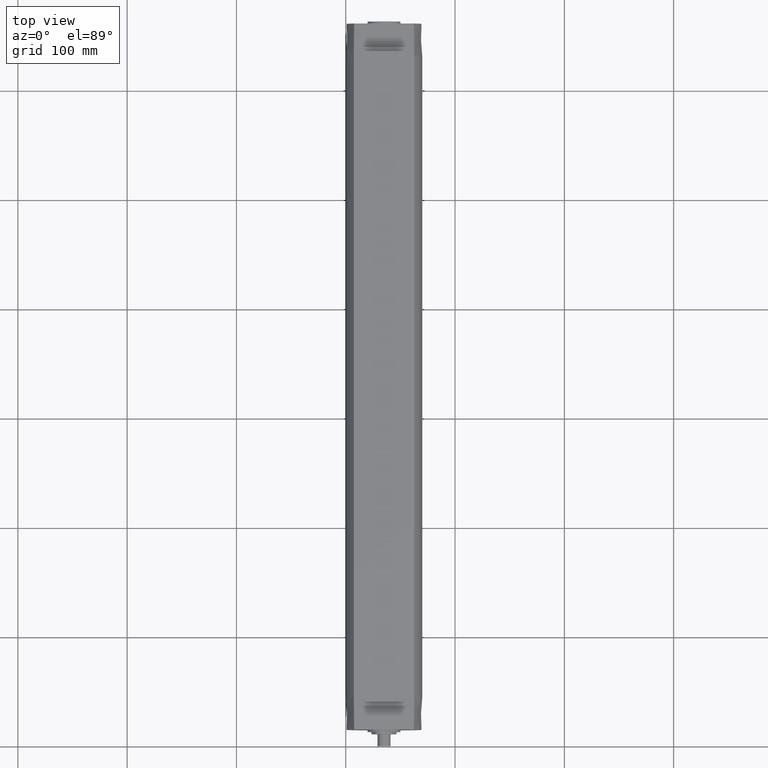
[diagram: clean part render]
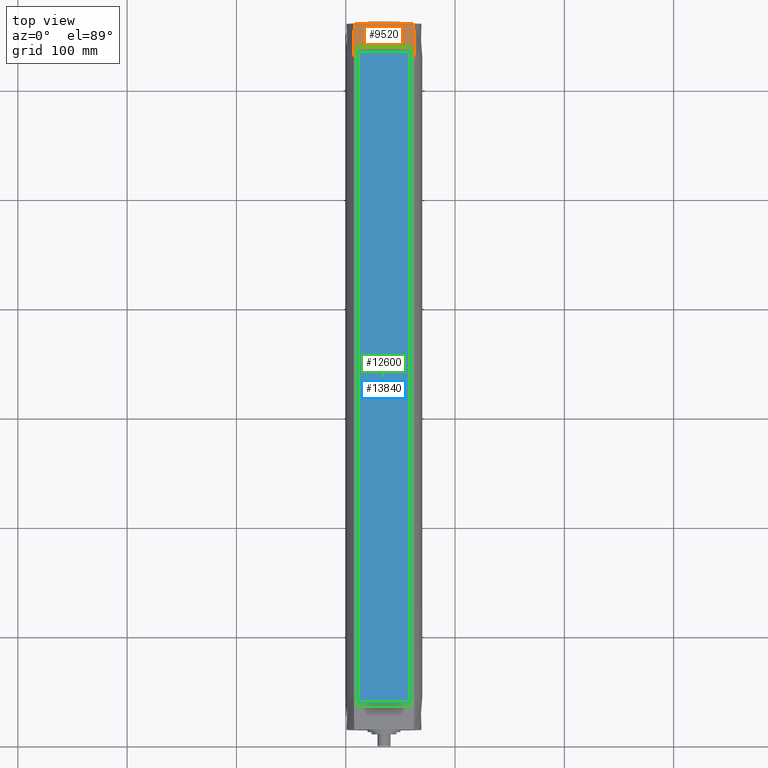
[diagram: same view with three faces highlighted in distinct colors, each labeled with its STEP entity id]
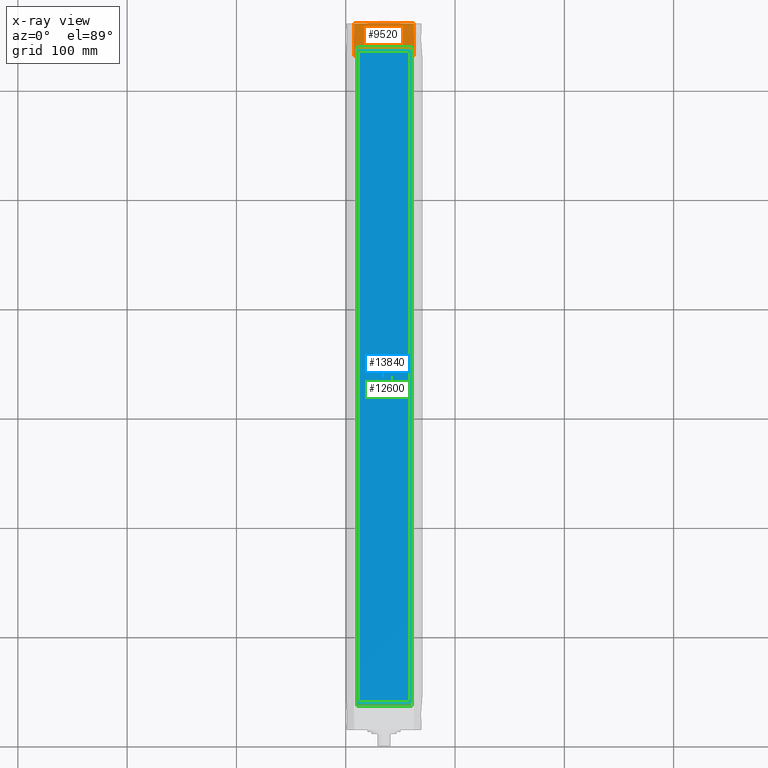
[diagram: x-ray of the same camera — body ghosted, the three highlighted faces saturated]
A machine part, top view with three faces highlighted in distinct colors.
The next image is the same camera in x-ray (body ghosted, the three faces saturated) — at least one of them is partly hidden behind the body in this view.
Their STEP definitions:

[orange] entity #9520 — the highlighted planar face has unit normal (0, 0.0244, 0.9997).
#7360=CARTESIAN_POINT('',(24.9,21.5,618.));
#7370=VERTEX_POINT('',#7360);
#7400=CARTESIAN_POINT('',(24.9,36.6035946756911,0.));
#7410=DIRECTION('',(0.,-0.024432178152653,0.999701489781183));
#7420=VECTOR('',#7410,1.);
#7430=LINE('',#7400,#7420);
#7440=CARTESIAN_POINT('',(24.9,21.2922644745253,626.5));
#7450=VERTEX_POINT('',#7440);
#7460=EDGE_CURVE('',#7370,#7450,#7430,.T.);
#8680=CARTESIAN_POINT('',(-24.9,21.2922644745252,626.5));
#8690=VERTEX_POINT('',#8680);
#8720=CARTESIAN_POINT('',(-24.9,36.6035946756911,0.));
#8730=DIRECTION('',(0.,0.024432178152653,-0.999701489781183));
#8740=VECTOR('',#8730,1.);
#8750=LINE('',#8720,#8740);
#8760=CARTESIAN_POINT('',(-24.9,21.4999999999999,618.));
#8770=VERTEX_POINT('',#8760);
#8780=EDGE_CURVE('',#8690,#8770,#8750,.T.);
#8970=CARTESIAN_POINT('',(28.9988307622479,20.7484860564189,
648.750005353404));
#8980=DIRECTION('',(0.,0.999701489781183,0.024432178152653));
#8990=DIRECTION('',(0.,0.024432178152653,-0.999701489781183));
#9000=AXIS2_PLACEMENT_3D('',#8970,#8980,#8990);
#9010=PLANE('',#9000);
#9020=CARTESIAN_POINT('',(0.,21.2922644745253,626.5));
#9030=DIRECTION('',(1.,0.,0.));
#9040=VECTOR('',#9030,1.);
#9050=LINE('',#9020,#9040);
#9060=EDGE_CURVE('',#8690,#7450,#9050,.T.);
#9070=ORIENTED_EDGE('',*,*,#9060,.F.);
#9080=ORIENTED_EDGE('',*,*,#7460,.T.);
#9090=CARTESIAN_POINT('',(0.,21.5,618.));
#9100=DIRECTION('',(1.,0.,0.));
#9110=VECTOR('',#9100,1.);
#9120=LINE('',#9090,#9110);
#9130=CARTESIAN_POINT('',(27.6179289592829,21.5,618.));
#9140=VERTEX_POINT('',#9130);
#9150=EDGE_CURVE('',#7370,#9140,#9120,.T.);
#9160=ORIENTED_EDGE('',*,*,#9150,.F.);
#9170=CARTESIAN_POINT('',(27.2571830238552,20.7668157924422,648.));
#9180=CARTESIAN_POINT('',(27.3782272919301,21.0112102938425,
638.000009593179));
#9190=CARTESIAN_POINT('',(27.4984655468682,21.2556050342733,
628.000009405855));
#9200=CARTESIAN_POINT('',(27.6179289592834,21.5000000000004,
617.999999999985));
#9210=B_SPLINE_CURVE_WITH_KNOTS('',3,(#9170,#9180,#9190,#9200),
.UNSPECIFIED.,.F.,.F.,(4,4),(0.,30.0111262778115),.UNSPECIFIED.);
#9220=CARTESIAN_POINT('',(27.2571830238552,20.7668157924422,648.));
#9230=VERTEX_POINT('',#9220);
#9240=EDGE_CURVE('',#9230,#9140,#9210,.T.);
#9250=ORIENTED_EDGE('',*,*,#9240,.T.);
#9260=CARTESIAN_POINT('',(0.,20.7668157924422,648.));
#9270=DIRECTION('',(1.,0.,0.));
#9280=VECTOR('',#9270,1.);
#9290=LINE('',#9260,#9280);
#9300=CARTESIAN_POINT('',(-27.2571830238552,20.7668157924421,648.));
#9310=VERTEX_POINT('',#9300);
#9320=EDGE_CURVE('',#9310,#9230,#9290,.T.);
#9330=ORIENTED_EDGE('',*,*,#9320,.T.);
#9340=CARTESIAN_POINT('',(-27.6179289592962,21.4999999999953,618.));
#9350=CARTESIAN_POINT('',(-27.498465546881,21.2556050342684,
628.000009405866));
#9360=CARTESIAN_POINT('',(-27.3782272919301,21.0112102938423,
638.000009593185));
#9370=CARTESIAN_POINT('',(-27.2571830238552,20.7668157924421,
648.000000000002));
#9380=B_SPLINE_CURVE_WITH_KNOTS('',3,(#9340,#9350,#9360,#9370),
.UNSPECIFIED.,.F.,.F.,(4,4),(0.,30.0111262777981),.UNSPECIFIED.);
#9390=CARTESIAN_POINT('',(-27.617928959283,21.4999999999999,618.));
#9400=VERTEX_POINT('',#9390);
#9410=EDGE_CURVE('',#9400,#9310,#9380,.T.);
#9420=ORIENTED_EDGE('',*,*,#9410,.T.);
#9430=CARTESIAN_POINT('',(0.,21.4999999999999,618.000000000004));
#9440=DIRECTION('',(1.,0.,0.));
#9450=VECTOR('',#9440,1.);
#9460=LINE('',#9430,#9450);
#9470=EDGE_CURVE('',#9400,#8770,#9460,.T.);
#9480=ORIENTED_EDGE('',*,*,#9470,.F.);
#9490=ORIENTED_EDGE('',*,*,#8780,.T.);
#9500=EDGE_LOOP('',(#9490,#9480,#9420,#9330,#9250,#9160,#9080,#9070));
#9510=FACE_OUTER_BOUND('',#9500,.T.);
#9520=ADVANCED_FACE('',(#9510),#9010,.T.);

[blue] entity #13840 — the highlighted planar face has unit normal (-0, -0, 1).
#12770=CARTESIAN_POINT('',(-23.4,26.4999999999999,622.5));
#12780=VERTEX_POINT('',#12770);
#12810=CARTESIAN_POINT('',(0.,26.5,622.5));
#12820=DIRECTION('',(-1.,0.,0.));
#12830=VECTOR('',#12820,1.);
#12840=LINE('',#12810,#12830);
#12850=CARTESIAN_POINT('',(23.4,26.5,622.5));
#12860=VERTEX_POINT('',#12850);
#12870=EDGE_CURVE('',#12860,#12780,#12840,.T.);
#13150=CARTESIAN_POINT('',(23.4,26.5,27.5));
#13160=VERTEX_POINT('',#13150);
#13190=CARTESIAN_POINT('',(0.,26.5,27.5));
#13200=DIRECTION('',(-1.,0.,0.));
#13210=VECTOR('',#13200,1.);
#13220=LINE('',#13190,#13210);
#13230=CARTESIAN_POINT('',(-23.4,26.4999999999999,27.5));
#13240=VERTEX_POINT('',#13230);
#13250=EDGE_CURVE('',#13160,#13240,#13220,.T.);
#13510=CARTESIAN_POINT('',(23.4,26.5,0.));
#13520=DIRECTION('',(0.,0.,-1.));
#13530=VECTOR('',#13520,1.);
#13540=LINE('',#13510,#13530);
#13550=EDGE_CURVE('',#12860,#13160,#13540,.T.);
#13680=CARTESIAN_POINT('',(-24.570005355,26.5,637.375005355));
#13690=DIRECTION('',(-0.,1.,0.));
#13700=DIRECTION('',(1.,0.,0.));
#13710=AXIS2_PLACEMENT_3D('',#13680,#13690,#13700);
#13720=PLANE('',#13710);
#13730=ORIENTED_EDGE('',*,*,#13550,.T.);
#13740=ORIENTED_EDGE('',*,*,#12870,.F.);
#13750=CARTESIAN_POINT('',(-23.4,26.5,0.));
#13760=DIRECTION('',(0.,0.,-1.));
#13770=VECTOR('',#13760,1.);
#13780=LINE('',#13750,#13770);
#13790=EDGE_CURVE('',#12780,#13240,#13780,.T.);
#13800=ORIENTED_EDGE('',*,*,#13790,.F.);
#13810=ORIENTED_EDGE('',*,*,#13250,.T.);
#13820=EDGE_LOOP('',(#13810,#13800,#13740,#13730));
#13830=FACE_OUTER_BOUND('',#13820,.T.);
#13840=ADVANCED_FACE('',(#13830),#13720,.T.);

[green] entity #12600 — the highlighted planar face has unit normal (-0, -0, 1).
#7200=CARTESIAN_POINT('',(24.9,22.5,23.5));
#7210=VERTEX_POINT('',#7200);
#7520=CARTESIAN_POINT('',(24.9,22.5,626.5));
#7530=VERTEX_POINT('',#7520);
#7560=CARTESIAN_POINT('',(24.9,22.5,0.));
#7570=DIRECTION('',(0.,0.,-1.));
#7580=VECTOR('',#7570,1.);
#7590=LINE('',#7560,#7580);
#7600=EDGE_CURVE('',#7530,#7210,#7590,.T.);
#7770=CARTESIAN_POINT('',(0.,22.5,23.5));
#7780=DIRECTION('',(-1.,0.,0.));
#7790=VECTOR('',#7780,1.);
#7800=LINE('',#7770,#7790);
#7810=CARTESIAN_POINT('',(-24.9,22.4999999999999,23.5));
#7820=VERTEX_POINT('',#7810);
#7830=EDGE_CURVE('',#7210,#7820,#7800,.T.);
#8560=CARTESIAN_POINT('',(-24.9,22.5,0.));
#8570=DIRECTION('',(0.,0.,-1.));
#8580=VECTOR('',#8570,1.);
#8590=LINE('',#8560,#8580);
#8600=CARTESIAN_POINT('',(-24.9,22.4999999999999,626.5));
#8610=VERTEX_POINT('',#8600);
#8620=EDGE_CURVE('',#8610,#7820,#8590,.T.);
#12100=CARTESIAN_POINT('',(-26.145005355,22.5,641.575005355));
#12110=DIRECTION('',(-0.,1.,0.));
#12120=DIRECTION('',(1.,0.,0.));
#12130=AXIS2_PLACEMENT_3D('',#12100,#12110,#12120);
#12140=PLANE('',#12130);
#12150=ORIENTED_EDGE('',*,*,#7600,.T.);
#12160=CARTESIAN_POINT('',(0.,22.5,626.5));
#12170=DIRECTION('',(-1.,0.,0.));
#12180=VECTOR('',#12170,1.);
#12190=LINE('',#12160,#12180);
#12200=EDGE_CURVE('',#7530,#8610,#12190,.T.);
#12210=ORIENTED_EDGE('',*,*,#12200,.F.);
#12220=ORIENTED_EDGE('',*,*,#8620,.F.);
#12230=ORIENTED_EDGE('',*,*,#7830,.T.);
#12240=EDGE_LOOP('',(#12230,#12220,#12210,#12150));
#12250=FACE_OUTER_BOUND('',#12240,.T.);
#12260=CARTESIAN_POINT('',(0.,22.5,27.5));
#12270=DIRECTION('',(-1.,0.,0.));
#12280=VECTOR('',#12270,1.);
#12290=LINE('',#12260,#12280);
#12300=CARTESIAN_POINT('',(23.4,22.5,27.5));
#12310=VERTEX_POINT('',#12300);
#12320=CARTESIAN_POINT('',(-23.4,22.4999999999999,27.5));
#12330=VERTEX_POINT('',#12320);
#12340=EDGE_CURVE('',#12310,#12330,#12290,.T.);
#12350=ORIENTED_EDGE('',*,*,#12340,.F.);
#12360=CARTESIAN_POINT('',(-23.4,22.5,0.));
#12370=DIRECTION('',(0.,0.,-1.));
#12380=VECTOR('',#12370,1.);
#12390=LINE('',#12360,#12380);
#12400=CARTESIAN_POINT('',(-23.4,22.4999999999999,622.5));
#12410=VERTEX_POINT('',#12400);
#12420=EDGE_CURVE('',#12410,#12330,#12390,.T.);
#12430=ORIENTED_EDGE('',*,*,#12420,.T.);
#12440=CARTESIAN_POINT('',(0.,22.5,622.5));
#12450=DIRECTION('',(-1.,0.,0.));
#12460=VECTOR('',#12450,1.);
#12470=LINE('',#12440,#12460);
#12480=CARTESIAN_POINT('',(23.4,22.5,622.5));
#12490=VERTEX_POINT('',#12480);
#12500=EDGE_CURVE('',#12490,#12410,#12470,.T.);
#12510=ORIENTED_EDGE('',*,*,#12500,.T.);
#12520=CARTESIAN_POINT('',(23.4,22.5,0.));
#12530=DIRECTION('',(0.,0.,-1.));
#12540=VECTOR('',#12530,1.);
#12550=LINE('',#12520,#12540);
#12560=EDGE_CURVE('',#12490,#12310,#12550,.T.);
#12570=ORIENTED_EDGE('',*,*,#12560,.F.);
#12580=EDGE_LOOP('',(#12570,#12510,#12430,#12350));
#12590=FACE_BOUND('',#12580,.T.);
#12600=ADVANCED_FACE('',(#12250,#12590),#12140,.T.);